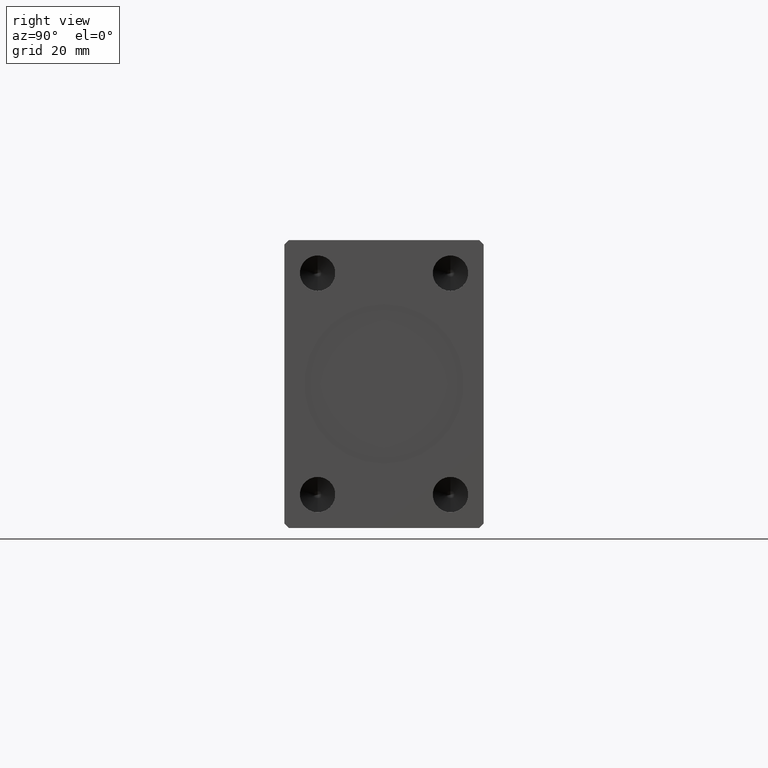
[diagram: clean part render]
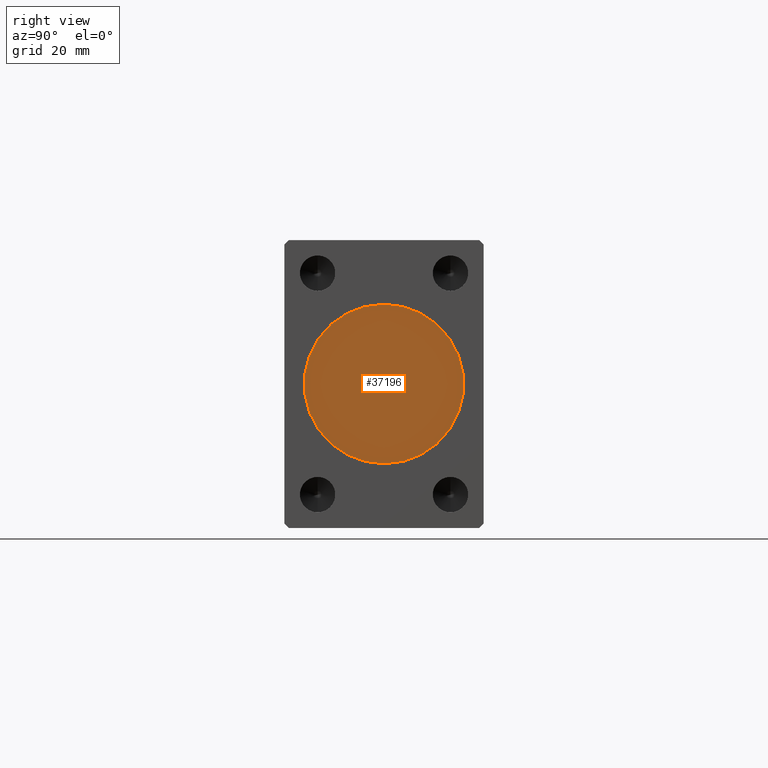
[diagram: same view with one face highlighted and labeled with its STEP entity id]
A machine part, right view. The second image highlights one B-rep face of the part: STEP entity #37196.
In plain terms, the highlighted planar face has unit normal (1, 0, 0).
Its self-contained STEP definition (entity closure, byte-faithful):
#1614 = CARTESIAN_POINT ( 'NONE',  ( 137.8000000000000114, 0.000000000000000000, 0.000000000000000000 ) ) ;
#2389 = AXIS2_PLACEMENT_3D ( 'NONE', #1614, #28607, #15215 ) ;
#3644 = EDGE_CURVE ( 'NONE', #29029, #8192, #39615, .T. ) ;
#4807 = DIRECTION ( 'NONE',  ( 0.000000000000000000, 0.000000000000000000, -1.000000000000000000 ) ) ;
#6337 = EDGE_LOOP ( 'NONE', ( #41295, #10720 ) ) ;
#7572 = AXIS2_PLACEMENT_3D ( 'NONE', #11504, #35374, #4807 ) ;
#8192 = VERTEX_POINT ( 'NONE', #14932 ) ;
#10720 = ORIENTED_EDGE ( 'NONE', *, *, #11562, .T. ) ;
#11504 = CARTESIAN_POINT ( 'NONE',  ( 137.8000000000000114, 0.000000000000000000, 0.000000000000000000 ) ) ;
#11562 = EDGE_CURVE ( 'NONE', #8192, #29029, #39092, .T. ) ;
#14932 = CARTESIAN_POINT ( 'NONE',  ( 137.8000000000000114, 2.204364238465235428E-15, 18.00000000000000000 ) ) ;
#15215 = DIRECTION ( 'NONE',  ( 0.000000000000000000, 0.000000000000000000, -1.000000000000000000 ) ) ;
#18134 = CARTESIAN_POINT ( 'NONE',  ( 137.8000000000000114, 0.000000000000000000, 0.000000000000000000 ) ) ;
#18784 = PLANE ( 'NONE',  #2389 ) ;
#19225 = FACE_OUTER_BOUND ( 'NONE', #6337, .T. ) ;
#25252 = DIRECTION ( 'NONE',  ( 1.000000000000000000, 0.000000000000000000, 0.000000000000000000 ) ) ;
#28607 = DIRECTION ( 'NONE',  ( 1.000000000000000000, 0.000000000000000000, 0.000000000000000000 ) ) ;
#28830 = DIRECTION ( 'NONE',  ( 0.000000000000000000, 0.000000000000000000, -1.000000000000000000 ) ) ;
#29029 = VERTEX_POINT ( 'NONE', #36373 ) ;
#35374 = DIRECTION ( 'NONE',  ( 1.000000000000000000, 0.000000000000000000, 0.000000000000000000 ) ) ;
#35523 = AXIS2_PLACEMENT_3D ( 'NONE', #18134, #25252, #28830 ) ;
#36373 = CARTESIAN_POINT ( 'NONE',  ( 137.8000000000000114, 0.000000000000000000, -18.00000000000000000 ) ) ;
#37196 = ADVANCED_FACE ( 'NONE', ( #19225 ), #18784, .T. ) ;
#39092 = CIRCLE ( 'NONE', #35523, 18.00000000000000000 ) ;
#39615 = CIRCLE ( 'NONE', #7572, 18.00000000000000000 ) ;
#41295 = ORIENTED_EDGE ( 'NONE', *, *, #3644, .T. ) ;